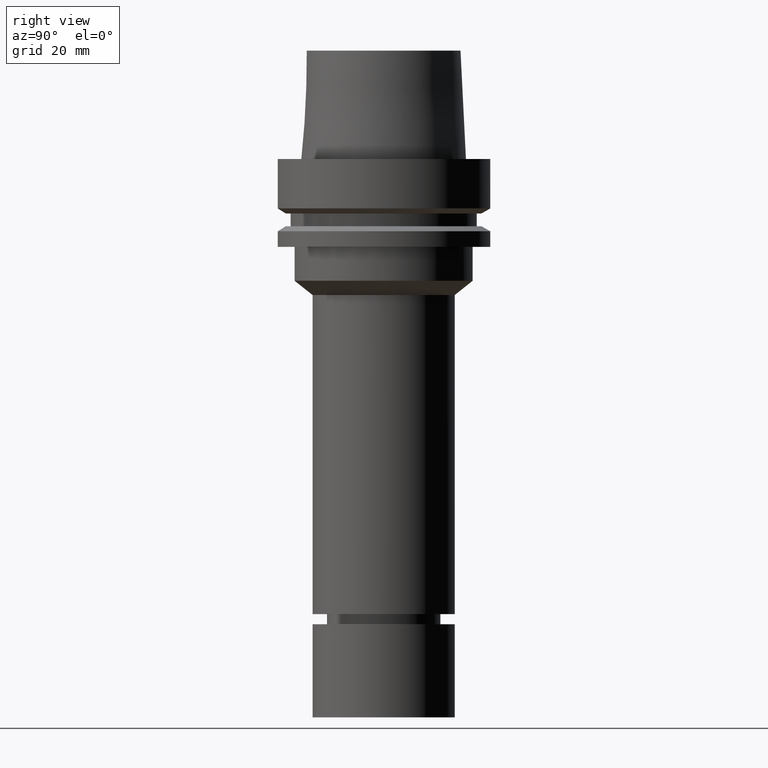
[diagram: clean part render]
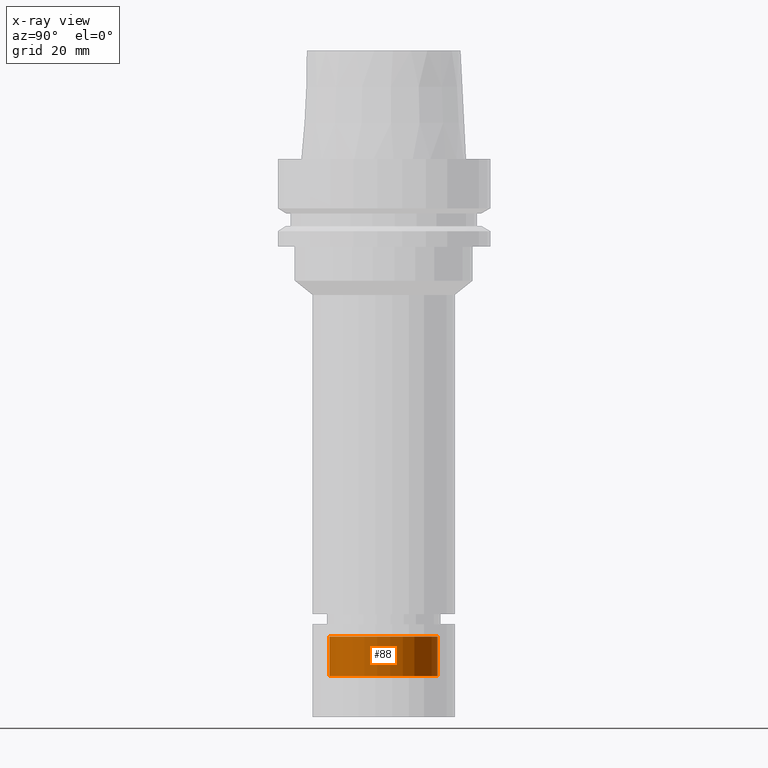
[diagram: x-ray — body ghosted, one internal face saturated and labeled with its STEP entity id]
A machine part, right view, then the same camera in x-ray: the body is ghosted and one INTERNAL B-rep face — a face not visible from any outside direction — is saturated and labeled: STEP entity #88.
In plain terms, the highlighted cylindrical surface (bore or boss wall) has radius 16 mm, axis along (-0, -0, 1).
Its self-contained STEP definition (entity closure, byte-faithful):
#88=ADVANCED_FACE('Unnamed[1]',(#229,#230),#231,.T.);
#123=EDGE_CURVE('Unnamed[1]',#282,#282,#283,.T.);
#131=EDGE_CURVE('Unnamed[1]',#295,#295,#296,.T.);
#229=FACE_BOUND('',#424,.T.);
#230=FACE_BOUND('',#425,.T.);
#231=CYLINDRICAL_SURFACE('',#426,16.0);
#282=VERTEX_POINT('',#490);
#283=CIRCLE('',#491,16.0);
#295=VERTEX_POINT('',#506);
#296=CIRCLE('',#507,16.0);
#424=EDGE_LOOP('',(#646));
#425=EDGE_LOOP('',(#647));
#426=AXIS2_PLACEMENT_3D('',#648,#649,#650);
#490=CARTESIAN_POINT('',(9.36210294914078E-015,16.0,-152.894744111674));
#491=AXIS2_PLACEMENT_3D('',#704,#705,#706);
#506=CARTESIAN_POINT('',(8.64179837321123E-015,16.0,-141.131277674967));
#507=AXIS2_PLACEMENT_3D('',#719,#720,#721);
#646=ORIENTED_EDGE('',*,*,#131,.F.);
#647=ORIENTED_EDGE('',*,*,#123,.T.);
#648=CARTESIAN_POINT('',(9.00195066117601E-015,1.8003901322352E-014,-147.013010893321));
#649=DIRECTION('',(-6.12323399573677E-017,-1.22464679914735E-016,1.0));
#650=DIRECTION('',(-1.23259516440783E-032,1.0,1.22464679914735E-016));
#704=CARTESIAN_POINT('',(9.36210294914078E-015,1.87242058982816E-014,-152.894744111674));
#705=DIRECTION('',(-6.12323399573677E-017,-1.22464679914735E-016,1.0));
#706=DIRECTION('',(-1.23259516440783E-032,1.0,1.22464679914735E-016));
#719=CARTESIAN_POINT('',(8.64179837321123E-015,1.72835967464225E-014,-141.131277674967));
#720=DIRECTION('',(-6.12323399573677E-017,-1.22464679914735E-016,1.0));
#721=DIRECTION('',(-1.23259516440783E-032,1.0,1.22464679914735E-016));